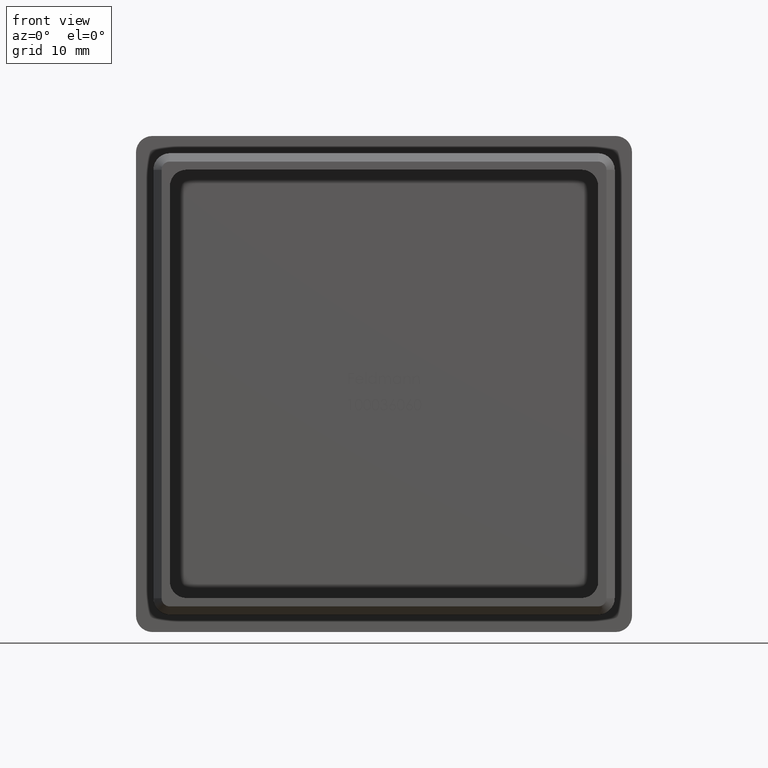
[diagram: clean part render]
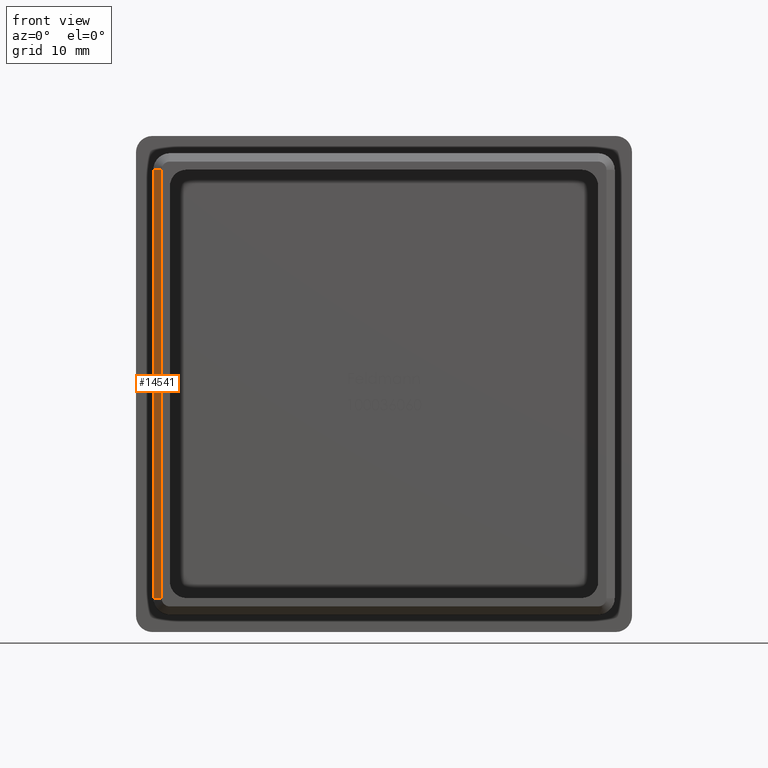
[diagram: same view with one face highlighted and labeled with its STEP entity id]
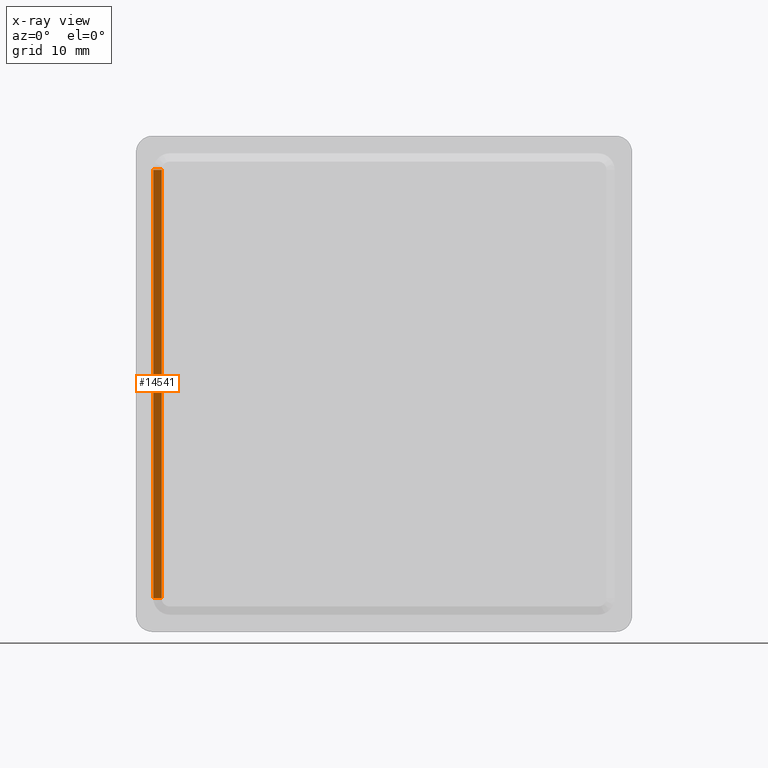
[diagram: x-ray of the same camera — body ghosted, the highlighted face saturated]
A machine part, front view. The second image highlights one B-rep face of the part: STEP entity #14541.
The next image is the same camera in x-ray: the body ghosted, the highlighted face saturated — about 0% of this face is hidden behind the body in this view.
In plain terms, the highlighted planar face has unit normal (-0.7071, -0.7071, 0).
Its self-contained STEP definition (entity closure, byte-faithful):
#448 = LINE ( 'NONE', #11355, #6414 ) ;
#881 = DIRECTION ( 'NONE',  ( 0.7071067811865474600, -0.7071067811865474600, 0.0000000000000000000 ) ) ;
#944 = DIRECTION ( 'NONE',  ( -0.7071067811865475700, -0.7071067811865475700, 0.0000000000000000000 ) ) ;
#1076 = EDGE_LOOP ( 'NONE', ( #8165, #2454, #9889, #4874 ) ) ;
#1094 = CARTESIAN_POINT ( 'NONE',  ( -27.90000000000000200, -19.00000000000000000, -25.89999999999999900 ) ) ;
#2357 = EDGE_CURVE ( 'NONE', #15379, #12040, #6971, .T. ) ;
#2373 = VECTOR ( 'NONE', #2952, 1000.000000000000100 ) ;
#2454 = ORIENTED_EDGE ( 'NONE', *, *, #2357, .F. ) ;
#2890 = VECTOR ( 'NONE', #5728, 1000.000000000000000 ) ;
#2952 = DIRECTION ( 'NONE',  ( -0.7071067811865474600, 0.7071067811865474600, 0.0000000000000000000 ) ) ;
#3106 = CARTESIAN_POINT ( 'NONE',  ( -27.90000000000000200, -19.00000000000000000, 25.89999999999999900 ) ) ;
#4424 = CARTESIAN_POINT ( 'NONE',  ( -26.89999999999999900, -20.00000000000000000, 25.89999999999999900 ) ) ;
#4874 = ORIENTED_EDGE ( 'NONE', *, *, #10183, .F. ) ;
#5526 = CARTESIAN_POINT ( 'NONE',  ( -27.90000000000000200, -19.00000000000000000, 25.89999999999999900 ) ) ;
#5728 = DIRECTION ( 'NONE',  ( 0.0000000000000000000, 0.0000000000000000000, 1.000000000000000000 ) ) ;
#6414 = VECTOR ( 'NONE', #881, 1000.000000000000100 ) ;
#6684 = AXIS2_PLACEMENT_3D ( 'NONE', #8055, #944, #10459 ) ;
#6971 = LINE ( 'NONE', #3106, #2890 ) ;
#7592 = CARTESIAN_POINT ( 'NONE',  ( -26.89999999999999900, -20.00000000000000000, -25.89999999999999900 ) ) ;
#7871 = VERTEX_POINT ( 'NONE', #4424 ) ;
#8040 = DIRECTION ( 'NONE',  ( 0.0000000000000000000, 0.0000000000000000000, -1.000000000000000000 ) ) ;
#8055 = CARTESIAN_POINT ( 'NONE',  ( -26.89999999999999900, -20.00000000000000000, 0.0000000000000000000 ) ) ;
#8092 = CARTESIAN_POINT ( 'NONE',  ( -26.89999999999999900, -20.00000000000000000, -25.89999999999999900 ) ) ;
#8165 = ORIENTED_EDGE ( 'NONE', *, *, #14909, .F. ) ;
#8790 = FACE_OUTER_BOUND ( 'NONE', #1076, .T. ) ;
#9889 = ORIENTED_EDGE ( 'NONE', *, *, #10983, .F. ) ;
#10183 = EDGE_CURVE ( 'NONE', #7871, #14350, #14243, .T. ) ;
#10459 = DIRECTION ( 'NONE',  ( -0.0000000000000000000, 0.0000000000000000000, 1.000000000000000000 ) ) ;
#10672 = CARTESIAN_POINT ( 'NONE',  ( -26.89999999999999900, -20.00000000000000000, -25.89999999999999900 ) ) ;
#10983 = EDGE_CURVE ( 'NONE', #14350, #15379, #12907, .T. ) ;
#11355 = CARTESIAN_POINT ( 'NONE',  ( -27.90000000000000200, -19.00000000000000000, 25.89999999999999900 ) ) ;
#11643 = PLANE ( 'NONE',  #6684 ) ;
#12040 = VERTEX_POINT ( 'NONE', #5526 ) ;
#12907 = LINE ( 'NONE', #7592, #2373 ) ;
#14243 = LINE ( 'NONE', #8092, #15345 ) ;
#14350 = VERTEX_POINT ( 'NONE', #10672 ) ;
#14541 = ADVANCED_FACE ( 'NONE', ( #8790 ), #11643, .T. ) ;
#14909 = EDGE_CURVE ( 'NONE', #12040, #7871, #448, .T. ) ;
#15345 = VECTOR ( 'NONE', #8040, 1000.000000000000000 ) ;
#15379 = VERTEX_POINT ( 'NONE', #1094 ) ;